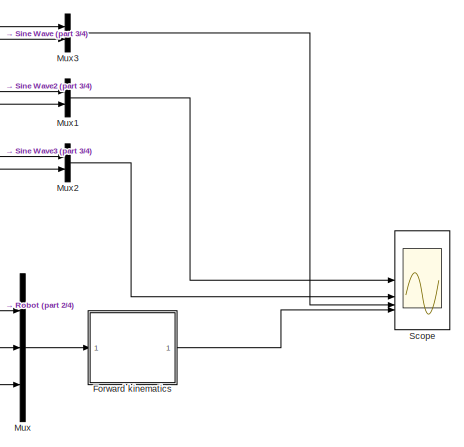
[diagram: root canvas - part 1/4, middle right region]
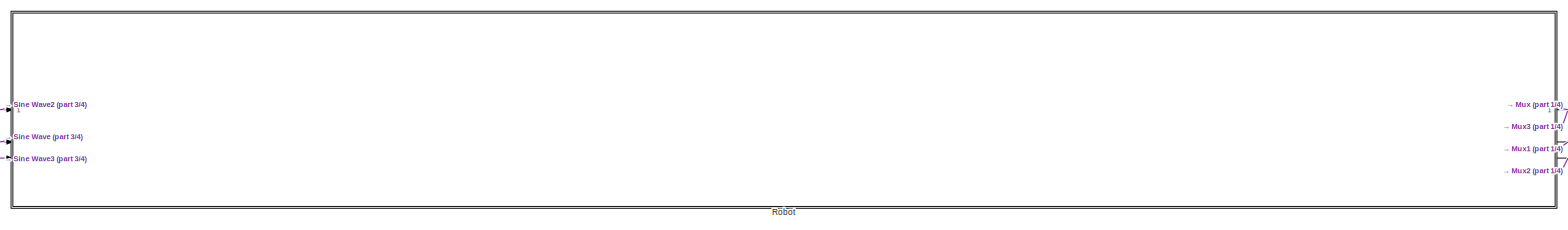
[diagram: root canvas - part 2/4, central region]
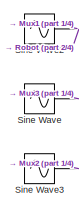
[diagram: root canvas - part 3/4, middle left region]
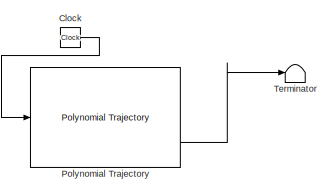
[diagram: root canvas - part 4/4, bottom left region]
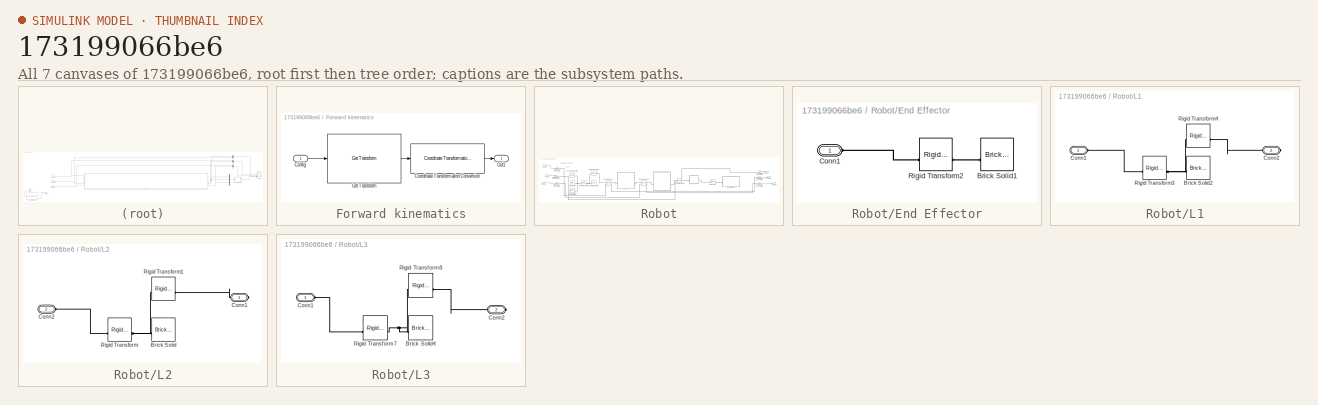
[diagram: thumbnail index - all 7 canvases of the model, root first then tree order]
MODEL slx_173199066be6
KIND model
CONFIG AbsTol = auto
CONFIG EnableMultiTasking = off
CONFIG FixedStep = auto
CONFIG MaxStep = auto
CONFIG MinStep = auto
CONFIG RelTol = 1e-3
CONFIG SampleTimeConstraint = Unconstrained
CONFIG SolverName = VariableStepAuto
CONFIG StartTime = 0.0
CONFIG StopTime = 10
BLOCK [Clock] Clock
BLOCK [SubSystem] Forward kinematics
BLOCK [Inport] Forward kinematics/Config
BLOCK [Reference] Forward kinematics/Coordinate Transformation Conversion  REF=robotcorelib/Coordinate Transformation Conversion
  LibrarySourceBlock = navlib/Utilities/Coordinate Transformation Conversion
  SourceBlock = robotcorelib/Coordinate Transformation Conversion
  SourceType = robotics.slcore.internal.block.CoordinateTransformationConversion
BLOCK [Reference] Forward kinematics/Get Transform  REF=robotmaniplib/Get Transform
  SourceBlock = robotmaniplib/Get Transform
  SourceType = Get Transform
BLOCK [Outport] Forward kinematics/Out1
BLOCK [Mux] Mux
  DisplayOption = bar
  Inputs = 3
BLOCK [Mux] Mux1
  DisplayOption = bar
  Inputs = 2
BLOCK [Mux] Mux2
  DisplayOption = bar
  Inputs = 2
BLOCK [Mux] Mux3
  DisplayOption = bar
  Inputs = 2
BLOCK [Reference] Polynomial Trajectory  REF=robotcorelib/Polynomial Trajectory
  Commented = on
  LibrarySourceBlock = robotutilslib/Polynomial Trajectory
  SourceBlock = robotcorelib/Polynomial Trajectory
  SourceType = robotics.slcore.internal.block.PolyTrajSys
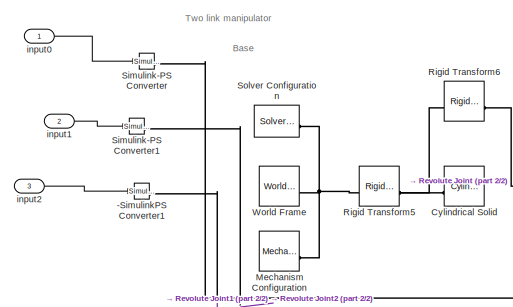
[diagram: Robot - part 1/2, left side, full height]
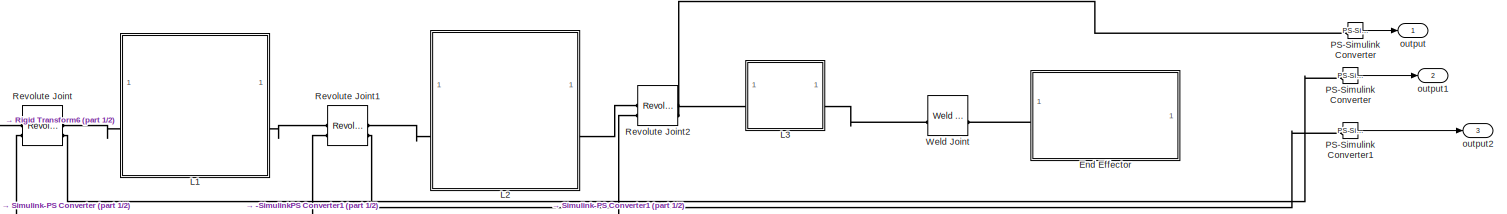
[diagram: Robot - part 2/2, full width, middle band]
BLOCK [SubSystem] Robot
BLOCK [Reference] Robot/-SimulinkPS Converter1  REF=nesl_utility/Simulink-PS
Converter
  SourceBlock = nesl_utility/Simulink-PS\nConverter
  SourceType = Simulink-PS\nConverter
BLOCK [Reference] Robot/Cylindrical Solid  REF=sm_lib/Body Elements/Cylindrical Solid
  SourceBlock = sm_lib/Body Elements/Cylindrical Solid
  SourceType = Cylindrical Solid
BLOCK [SubSystem] Robot/End Effector
BLOCK [Reference] Robot/End Effector/Brick Solid1  REF=sm_lib/Body Elements/Brick Solid
  SourceBlock = sm_lib/Body Elements/Brick Solid
  SourceType = Brick Solid
BLOCK [PMIOPort] Robot/End Effector/Conn1
  Side = Left
BLOCK [Reference] Robot/End Effector/Rigid Transform2  REF=sm_lib/Frames and
Transforms/Rigid
Transform
  SourceBlock = sm_lib/Frames and\nTransforms/Rigid\nTransform
  SourceType = Rigid\nTransform
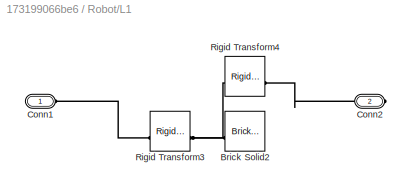
BLOCK [SubSystem] Robot/L1
BLOCK [Reference] Robot/L1/Brick Solid2  REF=sm_lib/Body Elements/Brick Solid
  SourceBlock = sm_lib/Body Elements/Brick Solid
  SourceType = Brick Solid
BLOCK [PMIOPort] Robot/L1/Conn1
  Side = Left
BLOCK [PMIOPort] Robot/L1/Conn2
  Port = 2
  Side = Right
BLOCK [Reference] Robot/L1/Rigid Transform3  REF=sm_lib/Frames and
Transforms/Rigid
Transform
  SourceBlock = sm_lib/Frames and\nTransforms/Rigid\nTransform
  SourceType = Rigid\nTransform
BLOCK [Reference] Robot/L1/Rigid Transform4  REF=sm_lib/Frames and
Transforms/Rigid
Transform
  SourceBlock = sm_lib/Frames and\nTransforms/Rigid\nTransform
  SourceType = Rigid\nTransform
BLOCK [SubSystem] Robot/L2
BLOCK [Reference] Robot/L2/Brick Solid  REF=sm_lib/Body Elements/Brick Solid
  SourceBlock = sm_lib/Body Elements/Brick Solid
  SourceType = Brick Solid
BLOCK [PMIOPort] Robot/L2/Conn1
  Side = Right
BLOCK [PMIOPort] Robot/L2/Conn2
  Port = 2
  Side = Left
BLOCK [Reference] Robot/L2/Rigid Transform  REF=sm_lib/Frames and
Transforms/Rigid
Transform
  SourceBlock = sm_lib/Frames and\nTransforms/Rigid\nTransform
  SourceType = Rigid\nTransform
BLOCK [Reference] Robot/L2/Rigid Transform1  REF=sm_lib/Frames and
Transforms/Rigid
Transform
  SourceBlock = sm_lib/Frames and\nTransforms/Rigid\nTransform
  SourceType = Rigid\nTransform
BLOCK [SubSystem] Robot/L3
BLOCK [Reference] Robot/L3/Brick Solid4  REF=sm_lib/Body Elements/Brick Solid
  SourceBlock = sm_lib/Body Elements/Brick Solid
  SourceType = Brick Solid
BLOCK [PMIOPort] Robot/L3/Conn1
  Side = Left
BLOCK [PMIOPort] Robot/L3/Conn2
  Port = 2
  Side = Right
BLOCK [Reference] Robot/L3/Rigid Transform7  REF=sm_lib/Frames and
Transforms/Rigid
Transform
  SourceBlock = sm_lib/Frames and\nTransforms/Rigid\nTransform
  SourceType = Rigid\nTransform
BLOCK [Reference] Robot/L3/Rigid Transform8  REF=sm_lib/Frames and
Transforms/Rigid
Transform
  SourceBlock = sm_lib/Frames and\nTransforms/Rigid\nTransform
  SourceType = Rigid\nTransform
BLOCK [Reference] Robot/Mechanism Configuration  REF=sm_lib/Utilities/Mechanism
Configuration
  SourceBlock = sm_lib/Utilities/Mechanism\nConfiguration
  SourceType = Mechanism\nConfiguration
BLOCK [Reference] Robot/PS-Simulink Converter  REF=nesl_utility/PS-Simulink
Converter
  SourceBlock = nesl_utility/PS-Simulink\nConverter
  SourceType = PS-Simulink\nConverter
BLOCK [Reference] Robot/PS-Simulink Converter   REF=nesl_utility/PS-Simulink
Converter
  SourceBlock = nesl_utility/PS-Simulink\nConverter
  SourceType = PS-Simulink\nConverter
BLOCK [Reference] Robot/PS-Simulink Converter1   REF=nesl_utility/PS-Simulink
Converter
  SourceBlock = nesl_utility/PS-Simulink\nConverter
  SourceType = PS-Simulink\nConverter
BLOCK [Reference] Robot/Revolute Joint  REF=sm_lib/Joints/Revolute Joint
  SourceBlock = sm_lib/Joints/Revolute Joint
  SourceType = Revolute Joint
BLOCK [Reference] Robot/Revolute Joint1  REF=sm_lib/Joints/Revolute Joint
  SourceBlock = sm_lib/Joints/Revolute Joint
  SourceType = Revolute Joint
BLOCK [Reference] Robot/Revolute Joint2  REF=sm_lib/Joints/Revolute Joint
  SourceBlock = sm_lib/Joints/Revolute Joint
  SourceType = Revolute Joint
BLOCK [Reference] Robot/Rigid Transform5  REF=sm_lib/Frames and
Transforms/Rigid
Transform
  SourceBlock = sm_lib/Frames and\nTransforms/Rigid\nTransform
  SourceType = Rigid\nTransform
BLOCK [Reference] Robot/Rigid Transform6  REF=sm_lib/Frames and
Transforms/Rigid
Transform
  SourceBlock = sm_lib/Frames and\nTransforms/Rigid\nTransform
  SourceType = Rigid\nTransform
BLOCK [Reference] Robot/Simulink-PS Converter   REF=nesl_utility/Simulink-PS
Converter
  SourceBlock = nesl_utility/Simulink-PS\nConverter
  SourceType = Simulink-PS\nConverter
BLOCK [Reference] Robot/Simulink-PS Converter1  REF=nesl_utility/Simulink-PS
Converter
  SourceBlock = nesl_utility/Simulink-PS\nConverter
  SourceType = Simulink-PS\nConverter
BLOCK [Reference] Robot/Solver Configuration  REF=nesl_utility/Solver
Configuration
  SourceBlock = nesl_utility/Solver\nConfiguration
  SourceType = Solver\nConfiguration
BLOCK [Reference] Robot/Weld Joint  REF=sm_lib/Joints/Weld Joint
  SourceBlock = sm_lib/Joints/Weld Joint
  SourceType = Weld Joint
BLOCK [Reference] Robot/World Frame  REF=sm_lib/Frames and
Transforms/World Frame
  SourceBlock = sm_lib/Frames and\nTransforms/World Frame
  SourceType = World Frame
BLOCK [Inport] Robot/input0
BLOCK [Inport] Robot/input1
  Port = 2
BLOCK [Inport] Robot/input2
  Port = 3
BLOCK [Outport] Robot/output
BLOCK [Outport] Robot/output1
  Port = 2
BLOCK [Outport] Robot/output2
  Port = 3
BLOCK [Scope] Scope
  Floating = off
  NumInputPorts = 4
  ScopeSpecificationString = Simulink.scopes.TimeScopeBlockCfg('CurrentConfiguration', extmgr.ConfigurationSet(extmgr.Configuration('Core','General UI',true,'FigureColor',[0 0 0],'ShowMainToolbar',false),extmgr.Configuration('Core','Source UI',true),extmgr.Configuration('Sources','WiredSimulink',true),extmgr.Configuration('Visuals','Time Domain',true,'SerializedDisplays',{struct('MinYLimReal','-1.625','MaxYLimReal','1.625','Y...<+4115ch>
BLOCK [Sin] Sine Wave
  Amplitude = 0.6
  Frequency = 0.7
  SampleTime = 0
BLOCK [Sin] Sine Wave2
  Amplitude = 1.3
  SampleTime = 0
BLOCK [Sin] Sine Wave3
  Amplitude = 1.3
  SampleTime = 0
BLOCK [Terminator] Terminator
ANNOTATION Robot: Base
ANNOTATION Robot: Two link manipulator
LINE Clock:1 -> Polynomial Trajectory:1
LINE Forward kinematics/Config:1 -> Forward kinematics/Get Transform:1
LINE Forward kinematics/Coordinate Transformation Conversion:1 -> Forward kinematics/Out1:1
LINE Forward kinematics/Get Transform:1 -> Forward kinematics/Coordinate Transformation Conversion:1
LINE Forward kinematics:1 -> Scope:4
LINE Mux1:1 -> Scope:1
LINE Mux2:1 -> Scope:2
LINE Mux3:1 -> Scope:3
LINE Mux:1 -> Forward kinematics:1
LINE Polynomial Trajectory:3 -> Terminator:1
LINE Robot/PS-Simulink Converter :1 -> Robot/output1:1
LINE Robot/PS-Simulink Converter1 :1 -> Robot/output2:1
LINE Robot/PS-Simulink Converter:1 -> Robot/output:1
LINE Robot/input0:1 -> Robot/Simulink-PS Converter :1
LINE Robot/input1:1 -> Robot/Simulink-PS Converter1:1
LINE Robot/input2:1 -> Robot/-SimulinkPS Converter1:1
NET Robot:1 -> Mux3:1, Mux:1
NET Robot:2 -> Mux1:2, Mux:2
NET Robot:3 -> Mux2:2, Mux:3
NET Sine Wave2:1 -> Mux1:1, Robot:1
NET Sine Wave3:1 -> Mux2:1, Robot:3
NET Sine Wave:1 -> Mux3:2, Robot:2
PLINE Robot/-SimulinkPS Converter1:RConn1 -- Robot/Revolute Joint1:LConn2
PNET net1: Robot/Cylindrical Solid:RConn1 -- Robot/Rigid Transform5:RConn1 -- Robot/Rigid Transform6:LConn1
PLINE Robot/End Effector/Brick Solid1:RConn1 -- Robot/End Effector/Rigid Transform2:RConn1
PLINE Robot/End Effector/Conn1:RConn1 -- Robot/End Effector/Rigid Transform2:LConn1
PLINE Robot/End Effector:LConn1 -- Robot/Weld Joint:RConn1
PNET net2: Robot/L1/Brick Solid2:RConn1 -- Robot/L1/Rigid Transform3:RConn1 -- Robot/L1/Rigid Transform4:LConn1
PLINE Robot/L1/Conn1:RConn1 -- Robot/L1/Rigid Transform3:LConn1
PLINE Robot/L1/Conn2:RConn1 -- Robot/L1/Rigid Transform4:RConn1
PLINE Robot/L1:LConn1 -- Robot/Revolute Joint:RConn1
PLINE Robot/L1:RConn1 -- Robot/Revolute Joint1:LConn1
PNET net3: Robot/L2/Brick Solid:RConn1 -- Robot/L2/Rigid Transform1:LConn1 -- Robot/L2/Rigid Transform:RConn1
PLINE Robot/L2/Conn1:RConn1 -- Robot/L2/Rigid Transform1:RConn1
PLINE Robot/L2/Conn2:RConn1 -- Robot/L2/Rigid Transform:LConn1
PLINE Robot/L2:LConn1 -- Robot/Revolute Joint1:RConn1
PLINE Robot/L2:RConn1 -- Robot/Revolute Joint2:LConn1
PNET net4: Robot/L3/Brick Solid4:RConn1 -- Robot/L3/Rigid Transform7:RConn1 -- Robot/L3/Rigid Transform8:LConn1
PLINE Robot/L3/Conn1:RConn1 -- Robot/L3/Rigid Transform7:LConn1
PLINE Robot/L3/Conn2:RConn1 -- Robot/L3/Rigid Transform8:RConn1
PLINE Robot/L3:LConn1 -- Robot/Revolute Joint2:RConn1
PLINE Robot/L3:RConn1 -- Robot/Weld Joint:LConn1
PNET net5: Robot/Mechanism Configuration:RConn1 -- Robot/Rigid Transform5:LConn1 -- Robot/Solver Configuration:RConn1 -- Robot/World Frame:RConn1
PLINE Robot/PS-Simulink Converter :LConn1 -- Robot/Revolute Joint:RConn2
PLINE Robot/PS-Simulink Converter1 :LConn1 -- Robot/Revolute Joint1:RConn2
PLINE Robot/PS-Simulink Converter:LConn1 -- Robot/Revolute Joint2:RConn2
PLINE Robot/Revolute Joint2:LConn2 -- Robot/Simulink-PS Converter1:RConn1
PLINE Robot/Revolute Joint:LConn1 -- Robot/Rigid Transform6:RConn1
PLINE Robot/Revolute Joint:LConn2 -- Robot/Simulink-PS Converter :RConn1
note: NET lines group one-source signal fan-out (src -> all destinations, sorted); 1:1 wires keep LINE; PNET lines group multi-terminal physical nets as a canonical sorted terminal list (undirected conserving connections); 2-terminal nets keep the pairwise PLINE form
